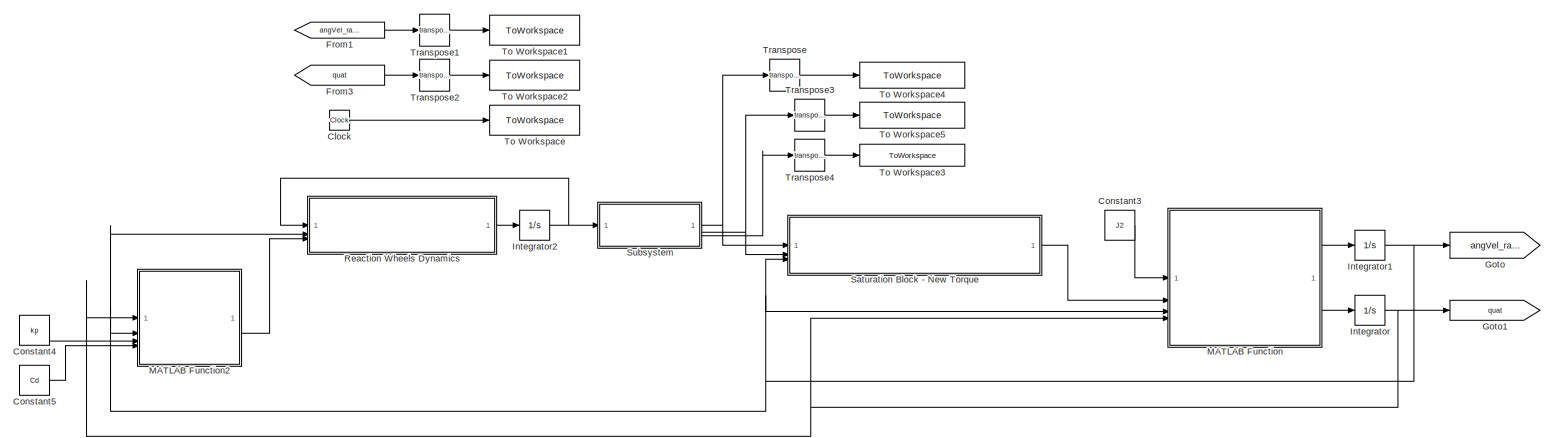
[diagram: root canvas - part 1/2, full width, top band]
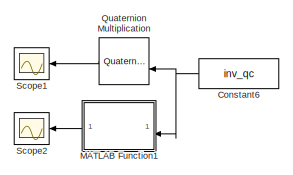
[diagram: root canvas - part 2/2, bottom right region]
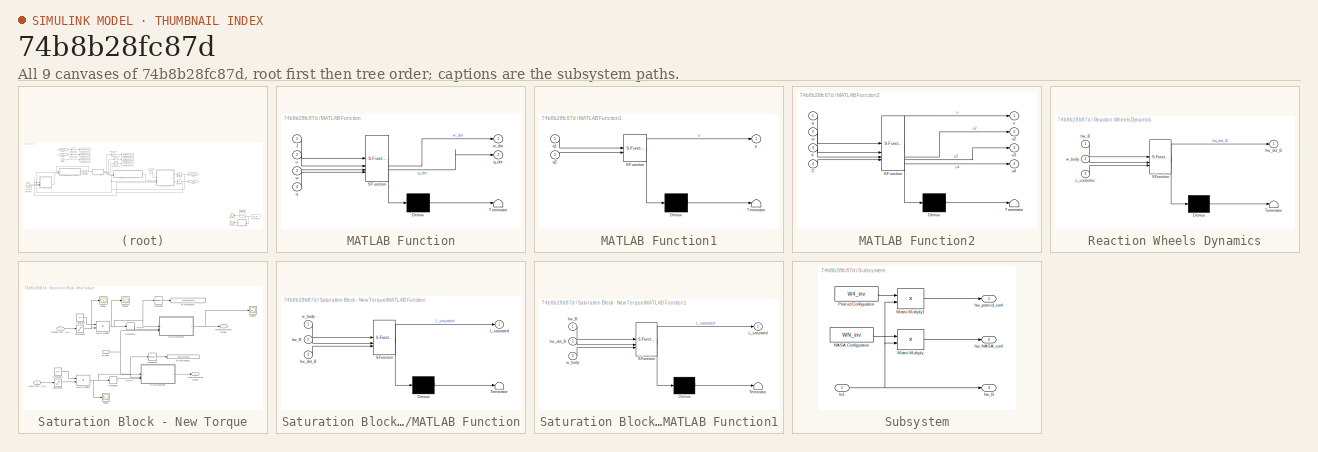
[diagram: thumbnail index - all 9 canvases of the model, root first then tree order]
MODEL slx_74b8b28fc87d
KIND model
CONFIG AbsTol = auto
CONFIG EnableMultiTasking = off
CONFIG FixedStep = 1e-2
CONFIG MaxStep = auto
CONFIG MinStep = auto
CONFIG RelTol = 1e-3
CONFIG SampleTimeConstraint = Unconstrained
CONFIG SolverName = FixedStepAuto
CONFIG StartTime = 0.0
CONFIG StopTime = 20*60
BLOCK [Clock] Clock
BLOCK [Constant] Constant3
  Value = J2
BLOCK [Constant] Constant4
  Value = kp
BLOCK [Constant] Constant5
  Value = Cd
BLOCK [Constant] Constant6
  Commented = on
  NameLocation = top
  Value = inv_qc
BLOCK [From] From1
  GotoTag = angVel_rads
BLOCK [From] From3
  GotoTag = quat
BLOCK [Goto] Goto
  GotoTag = angVel_rads
BLOCK [Goto] Goto1
  GotoTag = quat
BLOCK [Integrator] Integrator
  InitialCondition = q0
BLOCK [Integrator] Integrator1
  InitialCondition = w0
BLOCK [Integrator] Integrator2
  InitialCondition = hw0_B
BLOCK [SubSystem] MATLAB Function
  ErrorFcn = Stateflow.Translate.translate
  PermitHierarchicalResolution = ExplicitOnly
  SFBlockType = MATLAB Function
  TreatAsAtomicUnit = on
BLOCK [Demux] MATLAB Function/ Demux 
  Outputs = 1
BLOCK [S-Function] MATLAB Function/ SFunction 
  EnableBusSupport = on
  FunctionName = sf_sfun
  PortCounts = [4 3]
  SFcnIsStateOwnerBlock = off
  SFunctionDeploymentMode = off
  Tag = Stateflow S-Function 2
BLOCK [Terminator] MATLAB Function/ Terminator 
BLOCK [Inport] MATLAB Function/J
BLOCK [Inport] MATLAB Function/q
  Port = 4
BLOCK [Outport] MATLAB Function/q_dot
  Port = 2
BLOCK [Inport] MATLAB Function/u
  Port = 2
BLOCK [Inport] MATLAB Function/w
  Port = 3
BLOCK [Outport] MATLAB Function/w_dot
BLOCK [SubSystem] MATLAB Function1
  Commented = on
  ErrorFcn = Stateflow.Translate.translate
  NameLocation = top
  PermitHierarchicalResolution = ExplicitOnly
  SFBlockType = MATLAB Function
  TreatAsAtomicUnit = on
BLOCK [Demux] MATLAB Function1/ Demux 
  Outputs = 1
BLOCK [S-Function] MATLAB Function1/ SFunction 
  EnableBusSupport = on
  FunctionName = sf_sfun
  PortCounts = [2 2]
  SFcnIsStateOwnerBlock = off
  SFunctionDeploymentMode = off
  Tag = Stateflow S-Function 1
BLOCK [Terminator] MATLAB Function1/ Terminator 
BLOCK [Inport] MATLAB Function1/q1
BLOCK [Inport] MATLAB Function1/q2
  Port = 2
BLOCK [Outport] MATLAB Function1/y
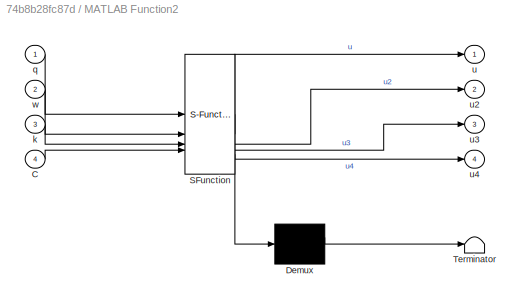
BLOCK [SubSystem] MATLAB Function2
  ErrorFcn = Stateflow.Translate.translate
  PermitHierarchicalResolution = ExplicitOnly
  SFBlockType = MATLAB Function
  TreatAsAtomicUnit = on
BLOCK [Demux] MATLAB Function2/ Demux 
  Outputs = 1
BLOCK [S-Function] MATLAB Function2/ SFunction 
  EnableBusSupport = on
  FunctionName = sf_sfun
  PortCounts = [4 5]
  SFcnIsStateOwnerBlock = off
  SFunctionDeploymentMode = off
  Tag = Stateflow S-Function 3
BLOCK [Terminator] MATLAB Function2/ Terminator 
BLOCK [Inport] MATLAB Function2/C
  Port = 4
BLOCK [Inport] MATLAB Function2/k
  Port = 3
BLOCK [Inport] MATLAB Function2/q
BLOCK [Outport] MATLAB Function2/u
BLOCK [Outport] MATLAB Function2/u2
  Port = 2
BLOCK [Outport] MATLAB Function2/u3
  Port = 3
BLOCK [Outport] MATLAB Function2/u4
  Port = 4
BLOCK [Inport] MATLAB Function2/w
  Port = 2
BLOCK [Reference] Quaternion Multiplication  REF=aerolibutil/Quaternion
Multiplication
  Commented = on
  NameLocation = top
  SourceBlock = aerolibutil/Quaternion\nMultiplication
  SourceType = Quaternion Multiplication
BLOCK [SubSystem] Reaction Wheels Dynamics
  ErrorFcn = Stateflow.Translate.translate
  PermitHierarchicalResolution = ExplicitOnly
  SFBlockType = MATLAB Function
  TreatAsAtomicUnit = on
BLOCK [Demux] Reaction Wheels Dynamics/ Demux 
  Outputs = 1
BLOCK [S-Function] Reaction Wheels Dynamics/ SFunction 
  EnableBusSupport = on
  FunctionName = sf_sfun
  PortCounts = [3 2]
  SFcnIsStateOwnerBlock = off
  SFunctionDeploymentMode = off
  Tag = Stateflow S-Function 4
BLOCK [Terminator] Reaction Wheels Dynamics/ Terminator 
BLOCK [Inport] Reaction Wheels Dynamics/L_controller
  Port = 3
BLOCK [Inport] Reaction Wheels Dynamics/hw_B
BLOCK [Outport] Reaction Wheels Dynamics/hw_dot_B
BLOCK [Inport] Reaction Wheels Dynamics/w_body
  Port = 2
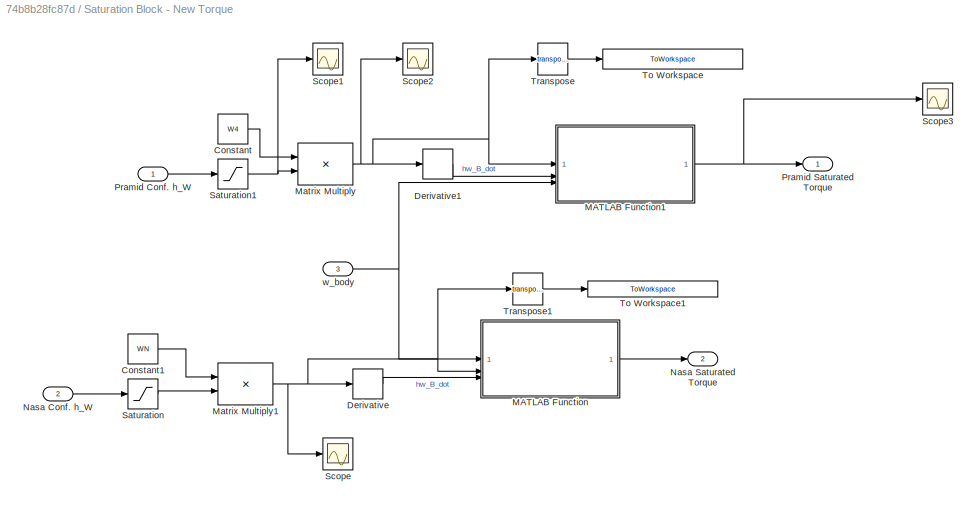
BLOCK [SubSystem] Saturation Block - New Torque
BLOCK [Constant] Saturation Block - New Torque/Constant
  Value = W4
BLOCK [Constant] Saturation Block - New Torque/Constant1
  Value = WN
BLOCK [Derivative] Saturation Block - New Torque/Derivative
BLOCK [Derivative] Saturation Block - New Torque/Derivative1
BLOCK [SubSystem] Saturation Block - New Torque/MATLAB Function
  ErrorFcn = Stateflow.Translate.translate
  PermitHierarchicalResolution = ExplicitOnly
  SFBlockType = MATLAB Function
  TreatAsAtomicUnit = on
BLOCK [Demux] Saturation Block - New Torque/MATLAB Function/ Demux 
  Outputs = 1
BLOCK [S-Function] Saturation Block - New Torque/MATLAB Function/ SFunction 
  EnableBusSupport = on
  FunctionName = sf_sfun
  PortCounts = [3 2]
  SFcnIsStateOwnerBlock = off
  SFunctionDeploymentMode = off
  Tag = Stateflow S-Function 5
BLOCK [Terminator] Saturation Block - New Torque/MATLAB Function/ Terminator 
BLOCK [Outport] Saturation Block - New Torque/MATLAB Function/L_saturated
BLOCK [Inport] Saturation Block - New Torque/MATLAB Function/hw_B
  Port = 2
BLOCK [Inport] Saturation Block - New Torque/MATLAB Function/hw_dot_B
  Port = 3
BLOCK [Inport] Saturation Block - New Torque/MATLAB Function/w_body
BLOCK [SubSystem] Saturation Block - New Torque/MATLAB Function1
  ErrorFcn = Stateflow.Translate.translate
  PermitHierarchicalResolution = ExplicitOnly
  SFBlockType = MATLAB Function
  TreatAsAtomicUnit = on
BLOCK [Demux] Saturation Block - New Torque/MATLAB Function1/ Demux 
  Outputs = 1
BLOCK [S-Function] Saturation Block - New Torque/MATLAB Function1/ SFunction 
  EnableBusSupport = on
  FunctionName = sf_sfun
  PortCounts = [3 2]
  SFcnIsStateOwnerBlock = off
  SFunctionDeploymentMode = off
  Tag = Stateflow S-Function 6
BLOCK [Terminator] Saturation Block - New Torque/MATLAB Function1/ Terminator 
BLOCK [Outport] Saturation Block - New Torque/MATLAB Function1/L_saturated
BLOCK [Inport] Saturation Block - New Torque/MATLAB Function1/hw_B
BLOCK [Inport] Saturation Block - New Torque/MATLAB Function1/hw_dot_B
  Port = 2
BLOCK [Inport] Saturation Block - New Torque/MATLAB Function1/w_body
  Port = 3
BLOCK [Product] Saturation Block - New Torque/Matrix Multiply
  Multiplication = Matrix(*)
BLOCK [Product] Saturation Block - New Torque/Matrix Multiply1
  Multiplication = Matrix(*)
BLOCK [Inport] Saturation Block - New Torque/Nasa Conf. h_W
  Port = 2
BLOCK [Outport] Saturation Block - New Torque/Nasa Saturated Torque
  Port = 2
BLOCK [Inport] Saturation Block - New Torque/Pramid Conf. h_W
BLOCK [Outport] Saturation Block - New Torque/Pramid Saturated Torque
BLOCK [Saturate] Saturation Block - New Torque/Saturation
  LinearizeAsGain = off
  LowerLimit = -250
  UpperLimit = 250
BLOCK [Saturate] Saturation Block - New Torque/Saturation1
  LowerLimit = -250
  UpperLimit = 250
BLOCK [Scope] Saturation Block - New Torque/Scope
  Floating = off
  NumInputPorts = 1
  ScopeSpecificationString = Simulink.scopes.TimeScopeBlockCfg('CurrentConfiguration', extmgr.ConfigurationSet(extmgr.Configuration('Core','General UI',true),extmgr.Configuration('Core','Source UI',true),extmgr.Configuration('Sources','WiredSimulink',true,'DataLoggingVariableName','ScopeData4'),extmgr.Configuration('Visuals','Time Domain',true,'SerializedDisplays',{struct('MinYLimReal','-145.78708','MaxYLimReal','191.45971','...<+1600ch>
BLOCK [Scope] Saturation Block - New Torque/Scope1
  Floating = off
  NumInputPorts = 1
  ScopeSpecificationString = Simulink.scopes.TimeScopeBlockCfg('CurrentConfiguration', extmgr.ConfigurationSet(extmgr.Configuration('Core','General UI',true),extmgr.Configuration('Core','Source UI',true),extmgr.Configuration('Sources','WiredSimulink',true,'DataLoggingVariableName','ScopeData5'),extmgr.Configuration('Visuals','Time Domain',true,'SerializedDisplays',{struct('MinYLimReal','-125.00000','MaxYLimReal','125.00000','...<+1601ch>
BLOCK [Scope] Saturation Block - New Torque/Scope2
  Floating = off
  NumInputPorts = 1
  ScopeSpecificationString = Simulink.scopes.TimeScopeBlockCfg('CurrentConfiguration', extmgr.ConfigurationSet(extmgr.Configuration('Core','General UI',true),extmgr.Configuration('Core','Source UI',true),extmgr.Configuration('Sources','WiredSimulink',true,'DataLoggingVariableName','ScopeData6'),extmgr.Configuration('Visuals','Time Domain',true,'SerializedDisplays',{struct('MinYLimReal','-191.23757','MaxYLimReal','178.38346','...<+1597ch>
BLOCK [Scope] Saturation Block - New Torque/Scope3
  Floating = off
  NumInputPorts = 1
  ScopeSpecificationString = Simulink.scopes.TimeScopeBlockCfg('CurrentConfiguration', extmgr.ConfigurationSet(extmgr.Configuration('Core','General UI',true),extmgr.Configuration('Core','Source UI',true),extmgr.Configuration('Sources','WiredSimulink',true,'DataLoggingVariableName','ScopeData1'),extmgr.Configuration('Visuals','Time Domain',true,'SerializedDisplays',{struct('MinYLimReal','-9.89968','MaxYLimReal','3.39184','YLab...<+1586ch>
BLOCK [ToWorkspace] Saturation Block - New Torque/To Workspace
  FixptAsFi = on
  MaxDataPoints = inf
  SampleTime = -1
  Save2DSignal = 2-D array (concatenate along first dimension)
  VariableName = hw_saturated_pramid_B
BLOCK [ToWorkspace] Saturation Block - New Torque/To Workspace1
  FixptAsFi = on
  MaxDataPoints = inf
  SampleTime = -1
  Save2DSignal = 2-D array (concatenate along first dimension)
  VariableName = hw_saturated_nasa_B
BLOCK [Math] Saturation Block - New Torque/Transpose
  Operator = transpose
BLOCK [Math] Saturation Block - New Torque/Transpose1
  Operator = transpose
BLOCK [Inport] Saturation Block - New Torque/w_body
  Port = 3
BLOCK [Scope] Scope1
  Commented = on
  Floating = off
  NameLocation = top
  NumInputPorts = 1
  ScopeSpecificationString = Simulink.scopes.TimeScopeBlockCfg('CurrentConfiguration', extmgr.ConfigurationSet(extmgr.Configuration('Core','General UI',true),extmgr.Configuration('Core','Source UI',true),extmgr.Configuration('Sources','WiredSimulink',true,'DataLoggingVariableName','ScopeData1'),extmgr.Configuration('Visuals','Time Domain',true,'SerializedDisplays',{struct('MinYLimReal','-1.20555','MaxYLimReal','1.24504','YLab...<+1649ch>
BLOCK [Scope] Scope2
  Commented = on
  Floating = off
  NameLocation = top
  NumInputPorts = 1
  ScopeSpecificationString = Simulink.scopes.TimeScopeBlockCfg('CurrentConfiguration', extmgr.ConfigurationSet(extmgr.Configuration('Core','General UI',true),extmgr.Configuration('Core','Source UI',true),extmgr.Configuration('Sources','WiredSimulink',true,'DataLoggingVariableName','ScopeData2'),extmgr.Configuration('Visuals','Time Domain',true,'SerializedDisplays',{struct('MinYLimReal','-1.24504','MaxYLimReal','1.20555','YLab...<+1649ch>
BLOCK [SubSystem] Subsystem
BLOCK [Inport] Subsystem/In1
BLOCK [Product] Subsystem/Matrix Multiply
  Multiplication = Matrix(*)
BLOCK [Product] Subsystem/Matrix Multiply1
  Multiplication = Matrix(*)
BLOCK [Constant] Subsystem/NASA Configuration
  Value = WN_inv
BLOCK [Constant] Subsystem/Pramid Configuration
  Value = W4_inv
BLOCK [Outport] Subsystem/hw_B
  Port = 3
BLOCK [Outport] Subsystem/hw_NASA_conf
  Port = 2
BLOCK [Outport] Subsystem/hw_pramid_conf
BLOCK [ToWorkspace] To Workspace
  FixptAsFi = on
  MaxDataPoints = inf
  SampleTime = -1
  Save2DSignal = 2-D array (concatenate along first dimension)
  VariableName = t_simulink
BLOCK [ToWorkspace] To Workspace1
  FixptAsFi = on
  MaxDataPoints = inf
  SampleTime = -1
  Save2DSignal = 2-D array (concatenate along first dimension)
  VariableName = w
BLOCK [ToWorkspace] To Workspace2
  FixptAsFi = on
  MaxDataPoints = inf
  SampleTime = -1
  Save2DSignal = 2-D array (concatenate along first dimension)
  VariableName = q
BLOCK [ToWorkspace] To Workspace3
  FixptAsFi = on
  MaxDataPoints = inf
  SampleTime = -1
  Save2DSignal = 2-D array (concatenate along first dimension)
  VariableName = hw_B
BLOCK [ToWorkspace] To Workspace4
  FixptAsFi = on
  MaxDataPoints = inf
  SampleTime = -1
  Save2DSignal = 2-D array (concatenate along first dimension)
  VariableName = hw_W_pramid
BLOCK [ToWorkspace] To Workspace5
  FixptAsFi = on
  MaxDataPoints = inf
  SampleTime = -1
  Save2DSignal = 2-D array (concatenate along first dimension)
  VariableName = hw_W_Nasa
BLOCK [Math] Transpose
  Operator = transpose
BLOCK [Math] Transpose1
  Operator = transpose
BLOCK [Math] Transpose2
  Operator = transpose
BLOCK [Math] Transpose3
  Operator = transpose
BLOCK [Math] Transpose4
  Operator = transpose
LINE Clock:1 -> To Workspace:1
LINE Constant3:1 -> MATLAB Function:1
LINE Constant4:1 -> MATLAB Function2:3
LINE Constant5:1 -> MATLAB Function2:4
NET Constant6:1 -> MATLAB Function1:2, Quaternion Multiplication:2
LINE From1:1 -> Transpose1:1
LINE From3:1 -> Transpose2:1
NET Integrator1:1 -> Goto:1, MATLAB Function2:2, MATLAB Function:3, Reaction Wheels Dynamics:2, Saturation Block - New Torque:3
NET Integrator2:1 -> Reaction Wheels Dynamics:1, Subsystem:1
NET Integrator:1 -> Goto1:1, MATLAB Function2:1, MATLAB Function:4
LINE MATLAB Function1:1 -> Scope2:1
LINE MATLAB Function2:2 -> Reaction Wheels Dynamics:3
LINE MATLAB Function:1 -> Integrator1:1
LINE MATLAB Function:2 -> Integrator:1
LINE Quaternion Multiplication:1 -> Scope1:1
LINE Reaction Wheels Dynamics:1 -> Integrator2:1
LINE Saturation Block - New Torque/Constant1:1 -> Saturation Block - New Torque/Matrix Multiply1:1
LINE Saturation Block - New Torque/Constant:1 -> Saturation Block - New Torque/Matrix Multiply:1
LINE Saturation Block - New Torque/Derivative1:1 -> Saturation Block - New Torque/MATLAB Function1:2
LINE Saturation Block - New Torque/Derivative:1 -> Saturation Block - New Torque/MATLAB Function:3
NET Saturation Block - New Torque/MATLAB Function1:1 -> Saturation Block - New Torque/Pramid Saturated Torque:1, Saturation Block - New Torque/Scope3:1
LINE Saturation Block - New Torque/MATLAB Function:1 -> Saturation Block - New Torque/Nasa Saturated Torque:1
NET Saturation Block - New Torque/Matrix Multiply1:1 -> Saturation Block - New Torque/Derivative:1, Saturation Block - New Torque/MATLAB Function:2, Saturation Block - New Torque/Scope:1, Saturation Block - New Torque/Transpose1:1
NET Saturation Block - New Torque/Matrix Multiply:1 -> Saturation Block - New Torque/Derivative1:1, Saturation Block - New Torque/MATLAB Function1:1, Saturation Block - New Torque/Scope2:1, Saturation Block - New Torque/Transpose:1
LINE Saturation Block - New Torque/Nasa Conf. h_W:1 -> Saturation Block - New Torque/Saturation:1
LINE Saturation Block - New Torque/Pramid Conf. h_W:1 -> Saturation Block - New Torque/Saturation1:1
NET Saturation Block - New Torque/Saturation1:1 -> Saturation Block - New Torque/Matrix Multiply:2, Saturation Block - New Torque/Scope1:1
LINE Saturation Block - New Torque/Saturation:1 -> Saturation Block - New Torque/Matrix Multiply1:2
LINE Saturation Block - New Torque/Transpose1:1 -> Saturation Block - New Torque/To Workspace1:1
LINE Saturation Block - New Torque/Transpose:1 -> Saturation Block - New Torque/To Workspace:1
NET Saturation Block - New Torque/w_body:1 -> Saturation Block - New Torque/MATLAB Function1:3, Saturation Block - New Torque/MATLAB Function:1
LINE Saturation Block - New Torque:1 -> MATLAB Function:2
NET Subsystem/In1:1 -> Subsystem/Matrix Multiply1:2, Subsystem/Matrix Multiply:2, Subsystem/hw_B:1
LINE Subsystem/Matrix Multiply1:1 -> Subsystem/hw_pramid_conf:1
LINE Subsystem/Matrix Multiply:1 -> Subsystem/hw_NASA_conf:1
LINE Subsystem/NASA Configuration:1 -> Subsystem/Matrix Multiply:1
LINE Subsystem/Pramid Configuration:1 -> Subsystem/Matrix Multiply1:1
NET Subsystem:1 -> Saturation Block - New Torque:1, Transpose:1
NET Subsystem:2 -> Saturation Block - New Torque:2, Transpose3:1
LINE Subsystem:3 -> Transpose4:1
LINE Transpose1:1 -> To Workspace1:1
LINE Transpose2:1 -> To Workspace2:1
LINE Transpose3:1 -> To Workspace5:1
LINE Transpose4:1 -> To Workspace3:1
LINE Transpose:1 -> To Workspace4:1
note: NET lines group one-source signal fan-out (src -> all destinations, sorted); 1:1 wires keep LINE
CHART MATLAB Function1 states=1 transitions=1
  STATE_LABEL 'eML_blk_kernel()'
  STATE_LABEL 'SCRIPT:\nfunction y = fcn(q1,q2)\n\ny = quat_multip(q1,q2);\n'
CHART MATLAB Function states=1 transitions=1
  STATE_LABEL 'eML_blk_kernel()'
  STATE_LABEL 'SCRIPT:\nfunction [w_dot,q_dot] = fcn(J,u,w,q)\n\n\nw1 = w(1);\nw2 = w(2);\nw3 = w(3);\n\nW = [ 0,  w3, -w2, w1;\n    -w3,   0,  w1, w2;\n     w2, -w1,   0, w3;\n    -w1, -w2, -w3,  0 ];\n\n% output\nw_dot = inv(J)*(u-cross(w,J*w));\n\nq_dot = 0.5*W*q;\n\nend\n'
CHART MATLAB Function2 states=1 transitions=1
  STATE_LABEL 'eML_blk_kernel()'
  STATE_LABEL 'SCRIPT:\nfunction [u,u2,u3,u4]= fcn(q,w,k,C)\n\nI3x3 = eye(3,3);\nK = k*I3x3;\n\n% Controller I\n% Controller II\nK2 = k*sign(q(4))*I3x3;\n% Controller III\nC3 = C*(1+transpose(q(1:3))*q(1:3));\n% Controller IIII\nC4 = C*(1-transpose(q(1:3))*q(1:3));\n\nu  = -K*q(1:3) - C*w;\nu2 = -K2*q(1:3) - C*w;\nu3 = -K2*q(1:3) - C3*w;\nu4 = -K2*q(1:3) - C4*w;\n\nend\n'
CHART Reaction Wheels Dynamics states=1 transitions=1
  STATE_LABEL 'eML_blk_kernel()'
  STATE_LABEL 'SCRIPT:\nfunction hw_dot_B = fcn(hw_B, w_body, L_controller)\n\nhw_dot_B = -cross(w_body,hw_B)-L_controller;\n\nend\n'
CHART Saturation Block - New Torque/MATLAB Function states=1 transitions=1
  STATE_LABEL 'eML_blk_kernel()'
  STATE_LABEL 'SCRIPT:\nfunction L_saturated = fcn(w_body, hw_B, hw_dot_B)\n\n    L_saturated = -cross(w_body,hw_B) - hw_dot_B;\n\nend\n'
CHART Saturation Block - New Torque/MATLAB Function1 states=1 transitions=1
  STATE_LABEL 'eML_blk_kernel()'
  STATE_LABEL 'SCRIPT:\nfunction L_saturated = fcn(hw_B, hw_dot_B, w_body)\n\n    L_saturated = -cross(w_body,hw_B) - hw_dot_B;\n\nend\n'
CHART  states=0 transitions=0
CHART  states=0 transitions=0
CHART  states=0 transitions=0
CHART  states=0 transitions=0
CHART  states=0 transitions=0
CHART  states=0 transitions=0
